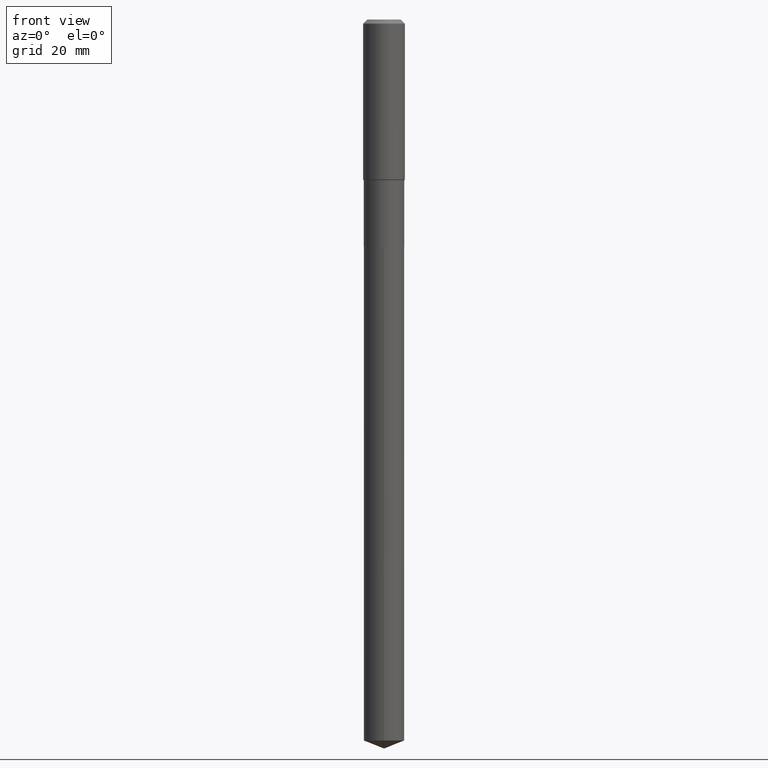
[diagram: clean part render]
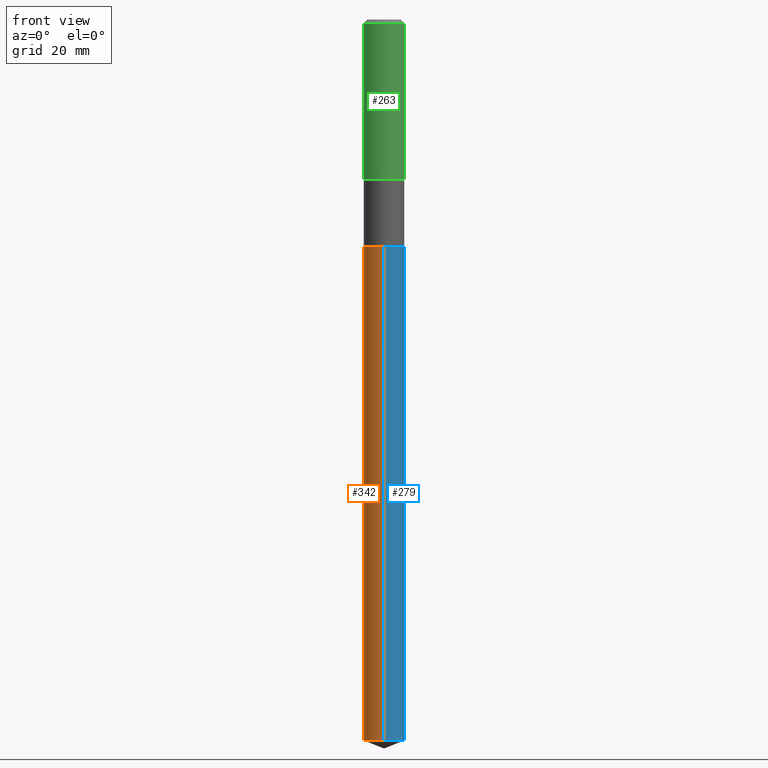
[diagram: same view with three faces highlighted in distinct colors, each labeled with its STEP entity id]
A machine part, front view with three faces highlighted in distinct colors.
Their STEP definitions:

[orange] entity #342 — the highlighted cylindrical surface (edge-blend (fillet) strip) has radius 5.8496 mm, axis along (-0, 0, 1).
#16 = EDGE_CURVE ( 'NONE', #102, #243, #286, .T. ) ;
#41 = ORIENTED_EDGE ( 'NONE', *, *, #16, .T. ) ;
#49 = CARTESIAN_POINT ( 'NONE',  ( 6.311510441883220673E-29, -9.011164187420277631E-15, -2.580900000000001082 ) ) ;
#54 = CARTESIAN_POINT ( 'NONE',  ( -1.608176304670946895E-15, -0.2303000000000284819, -8.177282417465878694 ) ) ;
#68 = CARTESIAN_POINT ( 'NONE',  ( 1.636379920455711329E-15, 0.2302999999999909841, -2.580900000000001526 ) ) ;
#86 = AXIS2_PLACEMENT_3D ( 'NONE', #101, #240, #394 ) ;
#100 = CARTESIAN_POINT ( 'NONE',  ( 1.636379920455710146E-15, 0.2302999999999714442, -8.177282417465882247 ) ) ;
#101 = CARTESIAN_POINT ( 'NONE',  ( 1.999736057355965212E-28, -2.855072656769672397E-14, -8.177282417465880471 ) ) ;
#102 = VERTEX_POINT ( 'NONE', #54 ) ;
#103 = CARTESIAN_POINT ( 'NONE',  ( -1.608176304671083960E-15, -0.2303000000000090253, -2.580900000000000194 ) ) ;
#108 = DIRECTION ( 'NONE',  ( -6.982962677686265922E-15, -1.000000000000000000, 2.372425526412734110E-15 ) ) ;
#120 = VERTEX_POINT ( 'NONE', #100 ) ;
#135 = DIRECTION ( 'NONE',  ( -6.982962677686265922E-15, -1.000000000000000000, 2.372425526412734110E-15 ) ) ;
#144 = CYLINDRICAL_SURFACE ( 'NONE', #468, 0.2303000000000000047 ) ;
#149 = CARTESIAN_POINT ( 'NONE',  ( 1.636379920455573476E-15, 0.2302999999999909841, -2.580900000000001526 ) ) ;
#158 = AXIS2_PLACEMENT_3D ( 'NONE', #49, #457, #135 ) ;
#184 = EDGE_LOOP ( 'NONE', ( #211, #204, #41, #322 ) ) ;
#204 = ORIENTED_EDGE ( 'NONE', *, *, #402, .T. ) ;
#211 = ORIENTED_EDGE ( 'NONE', *, *, #352, .F. ) ;
#224 = EDGE_CURVE ( 'NONE', #490, #243, #327, .T. ) ;
#239 = CARTESIAN_POINT ( 'NONE',  ( -1.608176304671083960E-15, -0.2303000000000090253, -2.580900000000000194 ) ) ;
#240 = DIRECTION ( 'NONE',  ( -2.445481582703130490E-29, 3.491463042142184116E-15, 1.000000000000000000 ) ) ;
#243 = VERTEX_POINT ( 'NONE', #239 ) ;
#246 = DIRECTION ( 'NONE',  ( -2.445481582703130490E-29, 3.491463042142184116E-15, 1.000000000000000000 ) ) ;
#286 = LINE ( 'NONE', #103, #476 ) ;
#292 = CARTESIAN_POINT ( 'NONE',  ( 6.311510441883220673E-29, -9.011164187420277631E-15, -2.580900000000001082 ) ) ;
#301 = DIRECTION ( 'NONE',  ( -2.445481582703130490E-29, 3.491463042142184116E-15, 1.000000000000000000 ) ) ;
#322 = ORIENTED_EDGE ( 'NONE', *, *, #224, .F. ) ;
#327 = CIRCLE ( 'NONE', #158, 0.2303000000000000047 ) ;
#342 = ADVANCED_FACE ( 'NONE', ( #411 ), #144, .T. ) ;
#352 = EDGE_CURVE ( 'NONE', #120, #490, #485, .T. ) ;
#383 = CIRCLE ( 'NONE', #86, 0.2303000000000000047 ) ;
#394 = DIRECTION ( 'NONE',  ( -6.982962677686265922E-15, -1.000000000000000000, 4.744851052825468220E-15 ) ) ;
#402 = EDGE_CURVE ( 'NONE', #120, #102, #383, .T. ) ;
#411 = FACE_OUTER_BOUND ( 'NONE', #184, .T. ) ;
#433 = DIRECTION ( 'NONE',  ( -2.445481582703130490E-29, 3.491463042142184116E-15, 1.000000000000000000 ) ) ;
#457 = DIRECTION ( 'NONE',  ( -2.445481582703130490E-29, 3.491463042142184116E-15, 1.000000000000000000 ) ) ;
#468 = AXIS2_PLACEMENT_3D ( 'NONE', #292, #433, #108 ) ;
#475 = VECTOR ( 'NONE', #301, 39.37007874015748143 ) ;
#476 = VECTOR ( 'NONE', #246, 39.37007874015748143 ) ;
#485 = LINE ( 'NONE', #149, #475 ) ;
#490 = VERTEX_POINT ( 'NONE', #68 ) ;

[blue] entity #279 — the highlighted cylindrical surface (edge-blend (fillet) strip) has radius 5.8496 mm, axis along (-0, 0, 1).
#1 = DIRECTION ( 'NONE',  ( -6.982962677686265922E-15, -1.000000000000000000, 2.372425526412734110E-15 ) ) ;
#16 = EDGE_CURVE ( 'NONE', #102, #243, #286, .T. ) ;
#35 = CYLINDRICAL_SURFACE ( 'NONE', #61, 0.2303000000000000047 ) ;
#54 = CARTESIAN_POINT ( 'NONE',  ( -1.608176304670946895E-15, -0.2303000000000284819, -8.177282417465878694 ) ) ;
#58 = CARTESIAN_POINT ( 'NONE',  ( 1.999736057355965212E-28, -2.855072656769672397E-14, -8.177282417465880471 ) ) ;
#61 = AXIS2_PLACEMENT_3D ( 'NONE', #217, #377, #1 ) ;
#68 = CARTESIAN_POINT ( 'NONE',  ( 1.636379920455711329E-15, 0.2302999999999909841, -2.580900000000001526 ) ) ;
#71 = CIRCLE ( 'NONE', #147, 0.2303000000000000047 ) ;
#100 = CARTESIAN_POINT ( 'NONE',  ( 1.636379920455710146E-15, 0.2302999999999714442, -8.177282417465882247 ) ) ;
#102 = VERTEX_POINT ( 'NONE', #54 ) ;
#103 = CARTESIAN_POINT ( 'NONE',  ( -1.608176304671083960E-15, -0.2303000000000090253, -2.580900000000000194 ) ) ;
#118 = DIRECTION ( 'NONE',  ( -2.445481582703130490E-29, 3.491463042142184116E-15, 1.000000000000000000 ) ) ;
#120 = VERTEX_POINT ( 'NONE', #100 ) ;
#141 = EDGE_LOOP ( 'NONE', ( #331, #396, #222, #218 ) ) ;
#147 = AXIS2_PLACEMENT_3D ( 'NONE', #58, #201, #356 ) ;
#149 = CARTESIAN_POINT ( 'NONE',  ( 1.636379920455573476E-15, 0.2302999999999909841, -2.580900000000001526 ) ) ;
#201 = DIRECTION ( 'NONE',  ( -2.445481582703130490E-29, 3.491463042142184116E-15, 1.000000000000000000 ) ) ;
#217 = CARTESIAN_POINT ( 'NONE',  ( 6.311510441883220673E-29, -9.011164187420277631E-15, -2.580900000000001082 ) ) ;
#218 = ORIENTED_EDGE ( 'NONE', *, *, #16, .F. ) ;
#222 = ORIENTED_EDGE ( 'NONE', *, *, #325, .F. ) ;
#235 = EDGE_CURVE ( 'NONE', #102, #120, #71, .T. ) ;
#239 = CARTESIAN_POINT ( 'NONE',  ( -1.608176304671083960E-15, -0.2303000000000090253, -2.580900000000000194 ) ) ;
#243 = VERTEX_POINT ( 'NONE', #239 ) ;
#246 = DIRECTION ( 'NONE',  ( -2.445481582703130490E-29, 3.491463042142184116E-15, 1.000000000000000000 ) ) ;
#252 = FACE_OUTER_BOUND ( 'NONE', #141, .T. ) ;
#279 = ADVANCED_FACE ( 'NONE', ( #252 ), #35, .T. ) ;
#286 = LINE ( 'NONE', #103, #476 ) ;
#301 = DIRECTION ( 'NONE',  ( -2.445481582703130490E-29, 3.491463042142184116E-15, 1.000000000000000000 ) ) ;
#325 = EDGE_CURVE ( 'NONE', #243, #490, #369, .T. ) ;
#329 = CARTESIAN_POINT ( 'NONE',  ( 6.311510441883220673E-29, -9.011164187420277631E-15, -2.580900000000001082 ) ) ;
#331 = ORIENTED_EDGE ( 'NONE', *, *, #235, .T. ) ;
#334 = DIRECTION ( 'NONE',  ( -6.982962677686265922E-15, -1.000000000000000000, 2.372425526412734110E-15 ) ) ;
#352 = EDGE_CURVE ( 'NONE', #120, #490, #485, .T. ) ;
#356 = DIRECTION ( 'NONE',  ( -6.982962677686265922E-15, -1.000000000000000000, 4.744851052825468220E-15 ) ) ;
#369 = CIRCLE ( 'NONE', #420, 0.2303000000000000047 ) ;
#377 = DIRECTION ( 'NONE',  ( -2.445481582703130490E-29, 3.491463042142184116E-15, 1.000000000000000000 ) ) ;
#396 = ORIENTED_EDGE ( 'NONE', *, *, #352, .T. ) ;
#420 = AXIS2_PLACEMENT_3D ( 'NONE', #329, #118, #334 ) ;
#475 = VECTOR ( 'NONE', #301, 39.37007874015748143 ) ;
#476 = VECTOR ( 'NONE', #246, 39.37007874015748143 ) ;
#485 = LINE ( 'NONE', #149, #475 ) ;
#490 = VERTEX_POINT ( 'NONE', #68 ) ;

[green] entity #263 — the highlighted cylindrical surface (edge-blend (fillet) strip) has radius 5.9995 mm, axis along (-0, 0, 1).
#25 = DIRECTION ( 'NONE',  ( -2.445468806185136877E-29, 3.491481338843145188E-15, 1.000000000000000000 ) ) ;
#40 = CARTESIAN_POINT ( 'NONE',  ( -0.2362000000000002431, -4.658736688134951629E-15, -1.814999999999999947 ) ) ;
#60 = LINE ( 'NONE', #362, #91 ) ;
#63 = LINE ( 'NONE', #397, #343 ) ;
#79 = DIRECTION ( 'NONE',  ( -2.445468806185136597E-29, 3.491481338843145583E-15, 1.000000000000000000 ) ) ;
#91 = VECTOR ( 'NONE', #202, 39.37007874015748143 ) ;
#105 = CARTESIAN_POINT ( 'NONE',  ( 0.2362000000000000210, -1.814313362916447834E-15, -0.04724000000000030952 ) ) ;
#109 = AXIS2_PLACEMENT_3D ( 'NONE', #189, #79, #379 ) ;
#114 = VERTEX_POINT ( 'NONE', #237 ) ;
#122 = EDGE_CURVE ( 'NONE', #345, #386, #459, .T. ) ;
#133 = CARTESIAN_POINT ( 'NONE',  ( 1.155239464041866207E-30, -1.649375784469512845E-16, -0.04724000000000030952 ) ) ;
#138 = CYLINDRICAL_SURFACE ( 'NONE', #171, 0.2362000000000001321 ) ;
#148 = ORIENTED_EDGE ( 'NONE', *, *, #384, .F. ) ;
#171 = AXIS2_PLACEMENT_3D ( 'NONE', #284, #241, #451 ) ;
#189 = CARTESIAN_POINT ( 'NONE',  ( 4.438525883226022968E-29, -6.337038630000308812E-15, -1.814999999999999947 ) ) ;
#191 = CIRCLE ( 'NONE', #109, 0.2362000000000002431 ) ;
#200 = DIRECTION ( 'NONE',  ( 1.000000000000000000, -6.982962677686267499E-15, 0.000000000000000000 ) ) ;
#202 = DIRECTION ( 'NONE',  ( -2.445468806185136877E-29, 3.491481338843145188E-15, 1.000000000000000000 ) ) ;
#207 = ORIENTED_EDGE ( 'NONE', *, *, #434, .T. ) ;
#237 = CARTESIAN_POINT ( 'NONE',  ( 0.2362000000000002431, -7.986414414469806915E-15, -1.814999999999999947 ) ) ;
#241 = DIRECTION ( 'NONE',  ( -2.445468806185136597E-29, 3.491481338843145583E-15, 1.000000000000000000 ) ) ;
#247 = AXIS2_PLACEMENT_3D ( 'NONE', #133, #427, #200 ) ;
#263 = ADVANCED_FACE ( 'NONE', ( #472 ), #138, .T. ) ;
#284 = CARTESIAN_POINT ( 'NONE',  ( 0.000000000000000000, 0.000000000000000000, 0.000000000000000000 ) ) ;
#326 = VERTEX_POINT ( 'NONE', #40 ) ;
#333 = EDGE_CURVE ( 'NONE', #326, #114, #191, .T. ) ;
#339 = EDGE_LOOP ( 'NONE', ( #148, #448, #207, #422 ) ) ;
#343 = VECTOR ( 'NONE', #25, 39.37007874015748143 ) ;
#345 = VERTEX_POINT ( 'NONE', #403 ) ;
#362 = CARTESIAN_POINT ( 'NONE',  ( -0.2362000000000001321, 1.678301941865357577E-15, -1.161852468318209457E-29 ) ) ;
#379 = DIRECTION ( 'NONE',  ( 1.000000000000000000, -6.982962677686265922E-15, 0.000000000000000000 ) ) ;
#384 = EDGE_CURVE ( 'NONE', #326, #345, #60, .T. ) ;
#386 = VERTEX_POINT ( 'NONE', #105 ) ;
#397 = CARTESIAN_POINT ( 'NONE',  ( 0.2362000000000001321, -1.649375784469497117E-15, 1.151752954443000789E-29 ) ) ;
#403 = CARTESIAN_POINT ( 'NONE',  ( -0.2362000000000000210, -1.572686162358272483E-15, -0.04724000000000030952 ) ) ;
#422 = ORIENTED_EDGE ( 'NONE', *, *, #122, .F. ) ;
#427 = DIRECTION ( 'NONE',  ( -2.445468806185136597E-29, 3.491481338843145583E-15, 1.000000000000000000 ) ) ;
#434 = EDGE_CURVE ( 'NONE', #114, #386, #63, .T. ) ;
#448 = ORIENTED_EDGE ( 'NONE', *, *, #333, .T. ) ;
#451 = DIRECTION ( 'NONE',  ( 1.000000000000000000, -6.982962677686266711E-15, 4.876176775795936353E-29 ) ) ;
#459 = CIRCLE ( 'NONE', #247, 0.2362000000000000210 ) ;
#472 = FACE_OUTER_BOUND ( 'NONE', #339, .T. ) ;